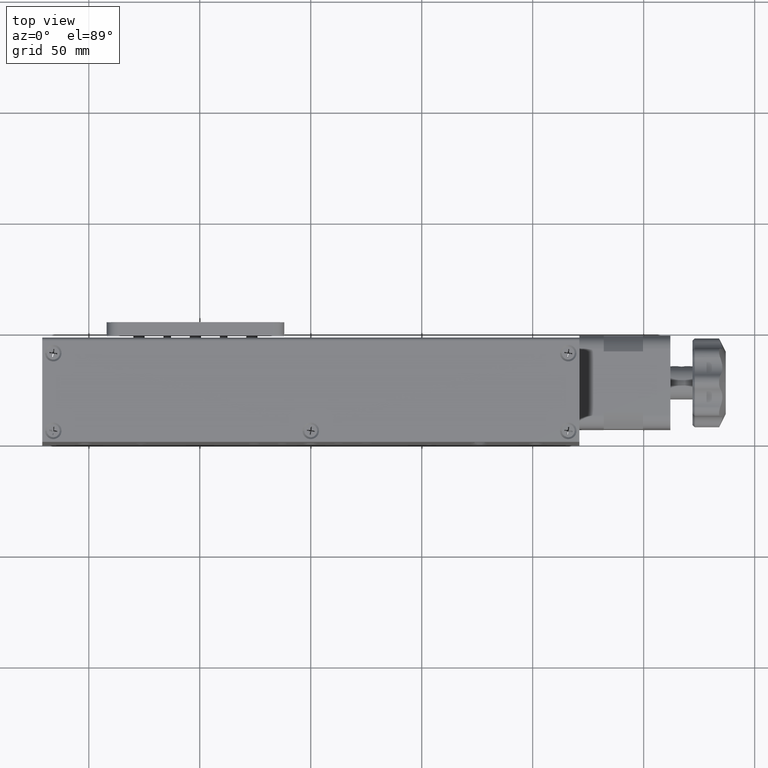
[diagram: clean part render]
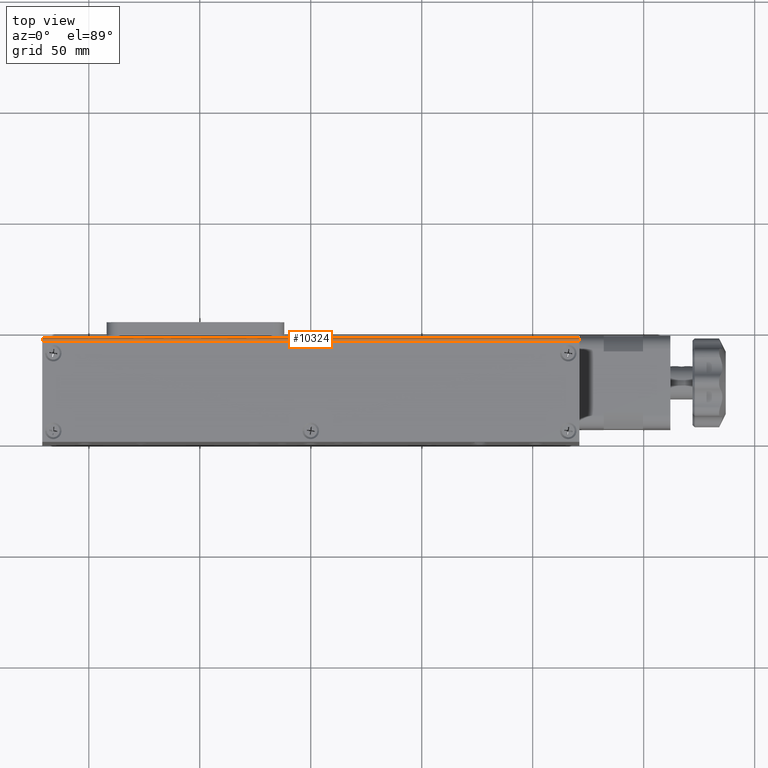
[diagram: same view with one face highlighted and labeled with its STEP entity id]
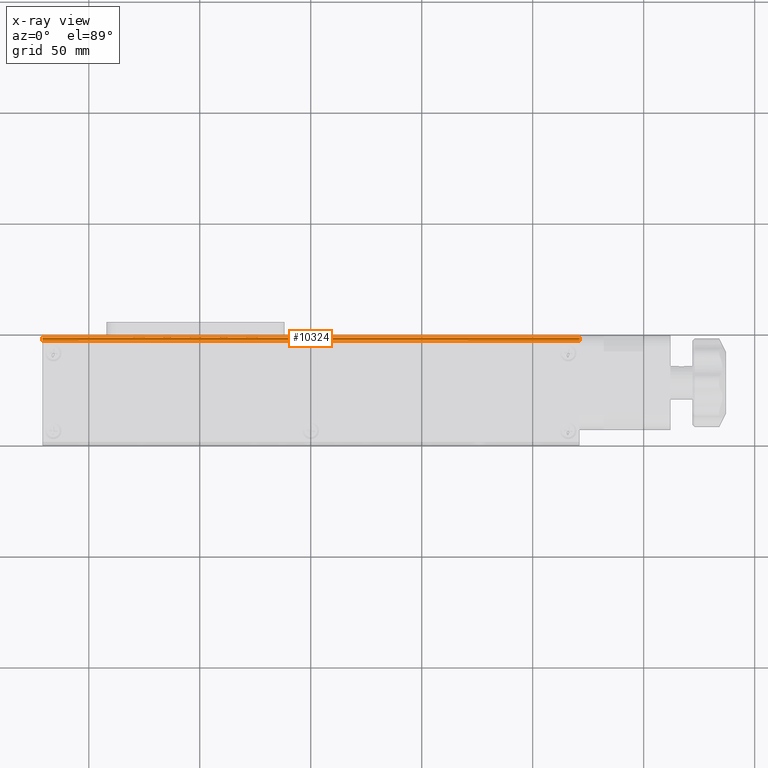
[diagram: x-ray of the same camera — body ghosted, the highlighted face saturated]
A machine part, top view. The second image highlights one B-rep face of the part: STEP entity #10324.
The next image is the same camera in x-ray: the body ghosted, the highlighted face saturated — about 0% of this face is hidden behind the body in this view.
In plain terms, the highlighted cylindrical surface (edge-blend (fillet) strip) has radius 1.5 mm, axis along (-1, -0, -0).
Its self-contained STEP definition (entity closure, byte-faithful):
#2418 = DIRECTION ( 'NONE',  ( 0.0000000000000000000, 0.0000000000000000000, -1.000000000000000000 ) ) ;
#3676 = AXIS2_PLACEMENT_3D ( 'NONE', #5714, #30203, #19437 ) ;
#5005 = AXIS2_PLACEMENT_3D ( 'NONE', #9309, #28423, #12073 ) ;
#5714 = CARTESIAN_POINT ( 'NONE',  ( 121.0000000000000000, 45.50000000000001400, 50.50000000000010700 ) ) ;
#5793 = ORIENTED_EDGE ( 'NONE', *, *, #8157, .T. ) ;
#6559 = EDGE_CURVE ( 'NONE', #16259, #24029, #32038, .T. ) ;
#6982 = VECTOR ( 'NONE', #12518, 1000.000000000000000 ) ;
#7670 = CARTESIAN_POINT ( 'NONE',  ( -121.0000000000000000, 45.50000000000001400, 52.00000000000010700 ) ) ;
#8157 = EDGE_CURVE ( 'NONE', #24029, #9505, #22030, .T. ) ;
#9309 = CARTESIAN_POINT ( 'NONE',  ( 121.0000000000000000, 45.50000000000001400, 50.50000000000010700 ) ) ;
#9505 = VERTEX_POINT ( 'NONE', #7670 ) ;
#9905 = ORIENTED_EDGE ( 'NONE', *, *, #15503, .F. ) ;
#10236 = VECTOR ( 'NONE', #24270, 1000.000000000000000 ) ;
#10324 = ADVANCED_FACE ( 'NONE', ( #29334 ), #12239, .T. ) ;
#11976 = CARTESIAN_POINT ( 'NONE',  ( -121.0000000000000000, 47.00000000000001400, 50.50000000000010700 ) ) ;
#12073 = DIRECTION ( 'NONE',  ( 0.0000000000000000000, 0.0000000000000000000, -1.000000000000000000 ) ) ;
#12239 = CYLINDRICAL_SURFACE ( 'NONE', #3676, 1.500000000000001300 ) ;
#12518 = DIRECTION ( 'NONE',  ( -1.000000000000000000, -0.0000000000000000000, -0.0000000000000000000 ) ) ;
#13980 = EDGE_LOOP ( 'NONE', ( #5793, #9905, #18671, #15397 ) ) ;
#15397 = ORIENTED_EDGE ( 'NONE', *, *, #6559, .T. ) ;
#15503 = EDGE_CURVE ( 'NONE', #31786, #9505, #21542, .T. ) ;
#16029 = CARTESIAN_POINT ( 'NONE',  ( 121.0000000000000000, 47.00000000000001400, 50.50000000000010700 ) ) ;
#16259 = VERTEX_POINT ( 'NONE', #31118 ) ;
#18671 = ORIENTED_EDGE ( 'NONE', *, *, #21870, .F. ) ;
#18808 = CIRCLE ( 'NONE', #5005, 1.500000000000001300 ) ;
#18821 = DIRECTION ( 'NONE',  ( 1.000000000000000000, 0.0000000000000000000, 0.0000000000000000000 ) ) ;
#19437 = DIRECTION ( 'NONE',  ( 0.0000000000000000000, 0.0000000000000000000, 1.000000000000000000 ) ) ;
#21542 = LINE ( 'NONE', #31650, #6982 ) ;
#21870 = EDGE_CURVE ( 'NONE', #16259, #31786, #18808, .T. ) ;
#22030 = CIRCLE ( 'NONE', #31062, 1.500000000000001300 ) ;
#24029 = VERTEX_POINT ( 'NONE', #11976 ) ;
#24270 = DIRECTION ( 'NONE',  ( -1.000000000000000000, -0.0000000000000000000, -0.0000000000000000000 ) ) ;
#26477 = CARTESIAN_POINT ( 'NONE',  ( 121.0000000000000000, 45.50000000000001400, 52.00000000000010700 ) ) ;
#28423 = DIRECTION ( 'NONE',  ( 1.000000000000000000, 0.0000000000000000000, 0.0000000000000000000 ) ) ;
#29334 = FACE_OUTER_BOUND ( 'NONE', #13980, .T. ) ;
#30203 = DIRECTION ( 'NONE',  ( -1.000000000000000000, -0.0000000000000000000, -0.0000000000000000000 ) ) ;
#31062 = AXIS2_PLACEMENT_3D ( 'NONE', #35181, #18821, #2418 ) ;
#31118 = CARTESIAN_POINT ( 'NONE',  ( 121.0000000000000000, 47.00000000000001400, 50.50000000000010700 ) ) ;
#31650 = CARTESIAN_POINT ( 'NONE',  ( 121.0000000000000000, 45.50000000000001400, 52.00000000000010700 ) ) ;
#31786 = VERTEX_POINT ( 'NONE', #26477 ) ;
#32038 = LINE ( 'NONE', #16029, #10236 ) ;
#35181 = CARTESIAN_POINT ( 'NONE',  ( -121.0000000000000000, 45.50000000000001400, 50.50000000000010700 ) ) ;